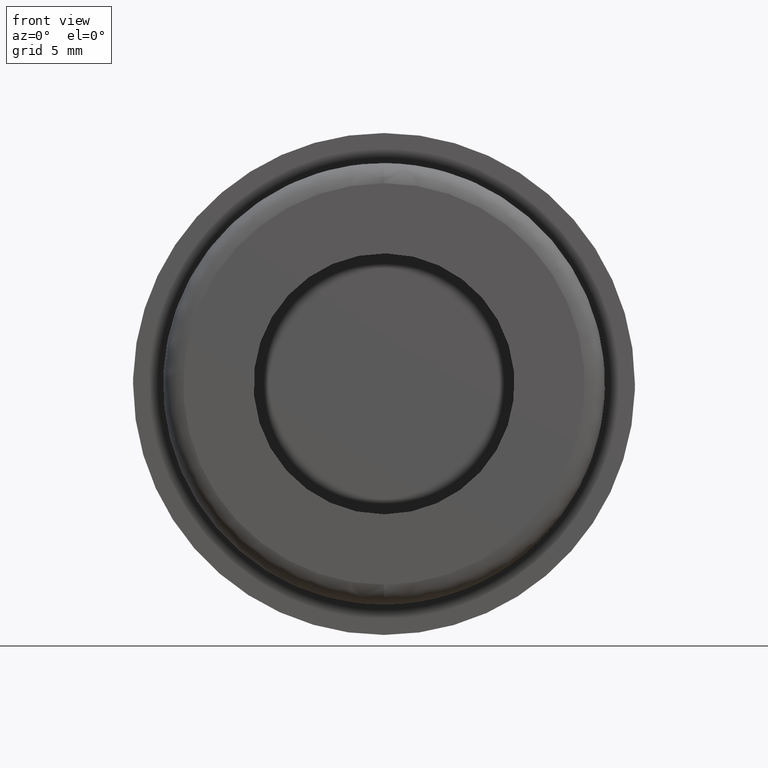
[diagram: clean part render]
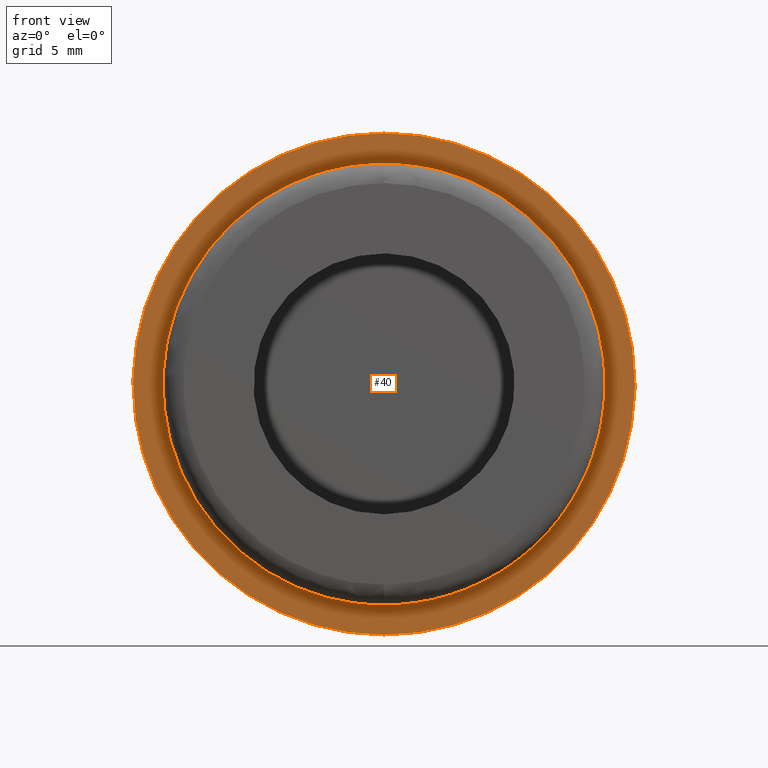
[diagram: same view with one face highlighted and labeled with its STEP entity id]
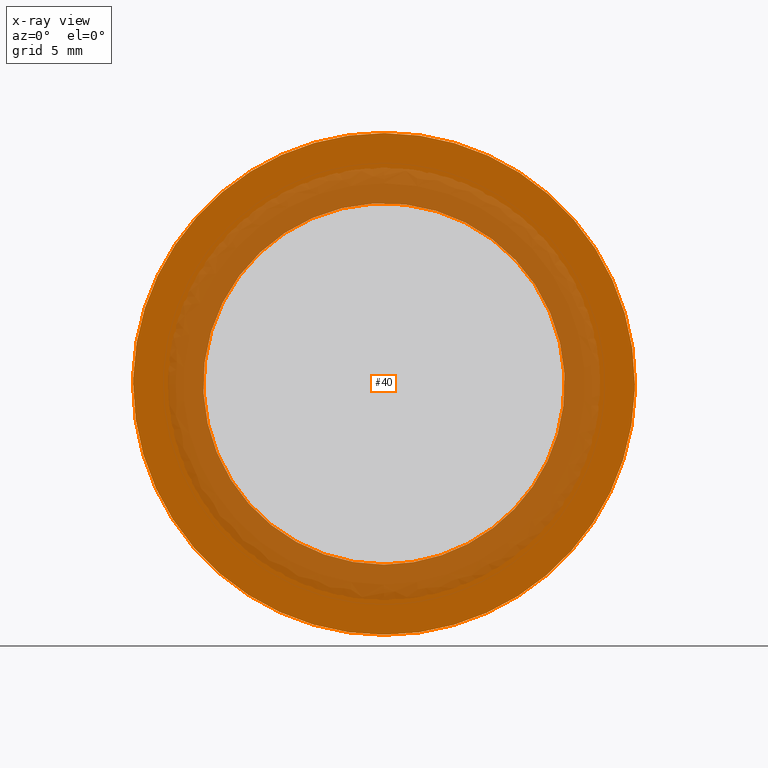
[diagram: x-ray of the same camera — body ghosted, the highlighted face saturated]
A machine part, front view. The second image highlights one B-rep face of the part: STEP entity #40.
The next image is the same camera in x-ray: the body ghosted, the highlighted face saturated — about 47% of this face is hidden behind the body in this view.
In plain terms, the highlighted planar face has unit normal (0, 1, 0).
Its self-contained STEP definition (entity closure, byte-faithful):
#40=ADVANCED_FACE('',(#63,#64),#62,.F.);
#62=PLANE('',#289);
#63=FACE_OUTER_BOUND('',#290,.T.);
#64=FACE_BOUND('',#291,.T.);
#286=CARTESIAN_POINT('',(-1.53817989413E+001,4.30000000000E+000,-1.49999956000E+001));
#287=DIRECTION('',(0.00000000000E+000,1.00000000000E+000,0.00000000000E+000));
#288=DIRECTION('',(0.00000000000E+000,0.00000000000E+000,1.00000000000E+000));
#289=AXIS2_PLACEMENT_3D('',#286,#287,#288);
#290=EDGE_LOOP('',(#546,#547,#548,#549,#550,#551));
#291=EDGE_LOOP('',(#552,#553,#554));
#546=ORIENTED_EDGE('',*,*,#686,.T.);
#547=ORIENTED_EDGE('',*,*,#687,.T.);
#548=ORIENTED_EDGE('',*,*,#688,.T.);
#549=ORIENTED_EDGE('',*,*,#689,.T.);
#550=ORIENTED_EDGE('',*,*,#690,.T.);
#551=ORIENTED_EDGE('',*,*,#691,.T.);
#552=ORIENTED_EDGE('',*,*,#692,.F.);
#553=ORIENTED_EDGE('',*,*,#693,.F.);
#554=ORIENTED_EDGE('',*,*,#694,.F.);
#686=EDGE_CURVE('',#756,#757,#758,.T.);
#687=EDGE_CURVE('',#757,#764,#765,.T.);
#688=EDGE_CURVE('',#764,#771,#772,.T.);
#689=EDGE_CURVE('',#771,#778,#779,.T.);
#690=EDGE_CURVE('',#778,#785,#786,.T.);
#691=EDGE_CURVE('',#785,#756,#792,.T.);
#692=EDGE_CURVE('',#798,#799,#800,.T.);
#693=EDGE_CURVE('',#806,#798,#807,.T.);
#694=EDGE_CURVE('',#799,#806,#813,.T.);
#756=VERTEX_POINT('',#1230);
#757=VERTEX_POINT('',#1231);
#758=CIRCLE('',#1235,1.24999980000E+001);
#764=VERTEX_POINT('',#1236);
#765=CIRCLE('',#1240,1.24999980000E+001);
#771=VERTEX_POINT('',#1241);
#772=CIRCLE('',#1245,1.24999980000E+001);
#778=VERTEX_POINT('',#1246);
#779=CIRCLE('',#1250,1.24999980000E+001);
#785=VERTEX_POINT('',#1251);
#786=CIRCLE('',#1255,1.24999980000E+001);
#792=CIRCLE('',#1259,1.24999980000E+001);
#798=VERTEX_POINT('',#1260);
#799=VERTEX_POINT('',#1261);
#800=CIRCLE('',#1265,8.99999800000E+000);
#806=VERTEX_POINT('',#1266);
#807=CIRCLE('',#1270,8.99999800000E+000);
#813=CIRCLE('',#1274,8.99999800000E+000);
#1230=CARTESIAN_POINT('',(0.00000000000E+000,4.30000000000E+000,-1.24999960000E+001));
#1231=CARTESIAN_POINT('',(1.24960505253E+001,4.29999552403E+000,-3.14117832951E-001));
#1232=CARTESIAN_POINT('',(-1.69197988953E-012,4.29999776201E+000,1.99999423156E-006));
#1233=DIRECTION('',(-1.83596180081E-007,-1.00000000000E+000,-1.79039023405E-007));
#1234=DIRECTION('',(-1.35358412820E-013,-1.79039023405E-007,1.00000000000E+000));
#1235=AXIS2_PLACEMENT_3D('',#1232,#1233,#1234);
#1236=CARTESIAN_POINT('',(1.24999979000E+001,4.29999557929E+000,-1.57887673190E-003));
#1237=CARTESIAN_POINT('',(-1.42819089888E-012,4.29999776201E+000,2.00000574235E-006));
#1238=DIRECTION('',(-1.74594982392E-007,-1.00000000000E+000,1.79039036247E-007));
#1239=DIRECTION('',(-9.99684201972E-001,1.79039023334E-007,2.51295906572E-002));
#1240=AXIS2_PLACEMENT_3D('',#1237,#1238,#1239);
#1241=CARTESIAN_POINT('',(0.00000000000E+000,4.30000000000E+000,1.25000000000E+001));
#1242=CARTESIAN_POINT('',(-1.42819089888E-012,4.29999776201E+000,2.00000574235E-006));
#1243=DIRECTION('',(-1.74594982392E-007,-1.00000000000E+000,1.79039036247E-007));
#1244=DIRECTION('',(-9.99684201972E-001,1.79039023334E-007,2.51295906572E-002));
#1245=AXIS2_PLACEMENT_3D('',#1242,#1243,#1244);
#1246=CARTESIAN_POINT('',(-1.24960505253E+001,4.29999552403E+000,3.14121832951E-001));
#1247=CARTESIAN_POINT('',(1.69197988953E-012,4.29999776201E+000,2.00000576633E-006));
#1248=DIRECTION('',(1.83596179930E-007,-1.00000000000E+000,1.79039023334E-007));
#1249=DIRECTION('',(1.35358412820E-013,-1.79039023334E-007,-1.00000000000E+000));
#1250=AXIS2_PLACEMENT_3D('',#1247,#1248,#1249);
#1251=CARTESIAN_POINT('',(-1.24999980000E+001,4.29999557958E+000,1.99964851763E-006));
#1252=CARTESIAN_POINT('',(1.42996725572E-012,4.29999776201E+000,1.99999426176E-006));
#1253=DIRECTION('',(1.74594982822E-007,-1.00000000000E+000,-1.79039019170E-007));
#1254=DIRECTION('',(9.99684201972E-001,1.79039023334E-007,-2.51295906572E-002));
#1255=AXIS2_PLACEMENT_3D('',#1252,#1253,#1254);
#1256=CARTESIAN_POINT('',(1.42996725572E-012,4.29999776201E+000,1.99999426176E-006));
#1257=DIRECTION('',(1.74594982822E-007,-1.00000000000E+000,-1.79039019170E-007));
#1258=DIRECTION('',(9.99684201972E-001,1.79039023334E-007,-2.51295906572E-002));
#1259=AXIS2_PLACEMENT_3D('',#1256,#1257,#1258);
#1260=CARTESIAN_POINT('',(-8.93708375126E+000,4.30000000000E+000,1.06230987579E+000));
#1261=CARTESIAN_POINT('',(-5.77315972805E-015,4.30000000000E+000,-8.99999600000E+000));
#1262=CARTESIAN_POINT('',(5.75539615966E-013,4.30000000000E+000,2.00000126815E-006));
#1263=DIRECTION('',(-1.25191885518E-014,-1.00000000000E+000,-8.44208256626E-014));
#1264=DIRECTION('',(-6.42402797624E-014,8.44208256626E-014,-1.00000000000E+000));
#1265=AXIS2_PLACEMENT_3D('',#1262,#1263,#1264);
#1266=CARTESIAN_POINT('',(8.93690001345E+000,4.30000000000E+000,-1.06385050368E+000));
#1267=CARTESIAN_POINT('',(5.75539615966E-013,4.30000000000E+000,2.00000126815E-006));
#1268=DIRECTION('',(-1.25191885518E-014,-1.00000000000E+000,-8.44208256626E-014));
#1269=DIRECTION('',(-6.42402797624E-014,8.44208256626E-014,-1.00000000000E+000));
#1270=AXIS2_PLACEMENT_3D('',#1267,#1268,#1269);
#1271=CARTESIAN_POINT('',(5.75539615966E-013,4.30000000000E+000,2.00000126815E-006));
#1272=DIRECTION('',(-1.25191885518E-014,-1.00000000000E+000,-8.44208256626E-014));
#1273=DIRECTION('',(-6.42402797624E-014,8.44208256626E-014,-1.00000000000E+000));
#1274=AXIS2_PLACEMENT_3D('',#1271,#1272,#1273);